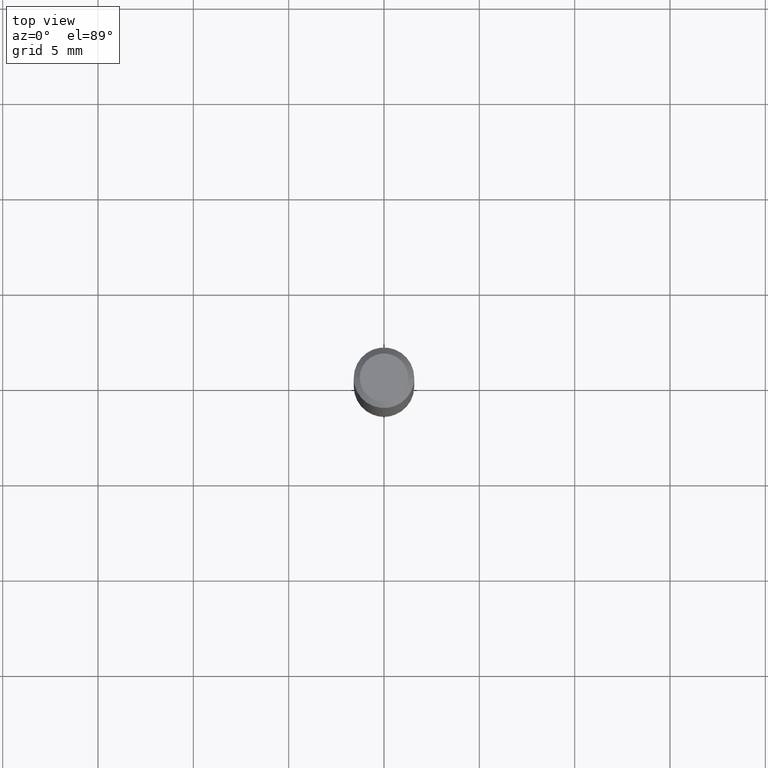
[diagram: clean part render]
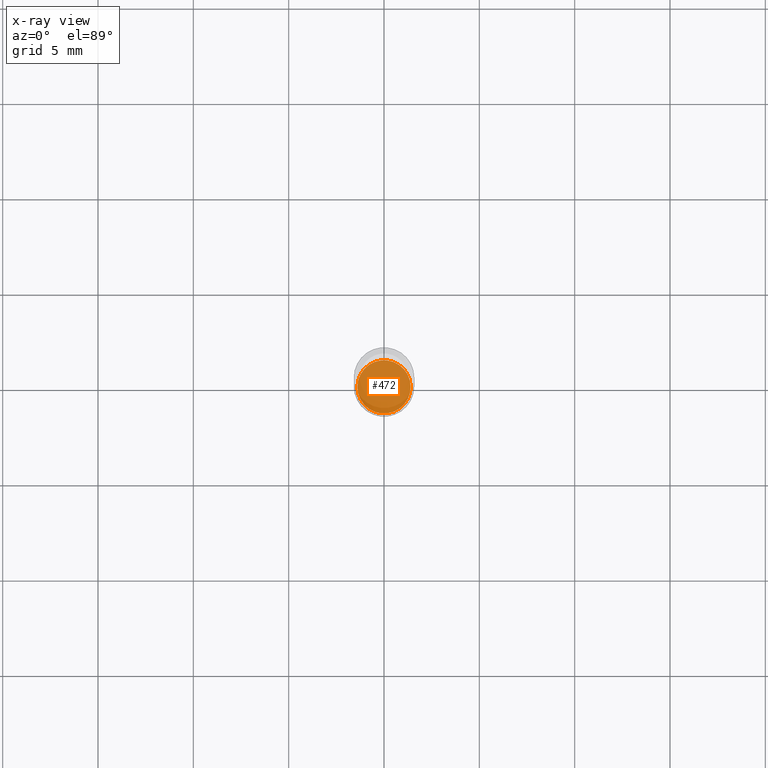
[diagram: x-ray — body ghosted, one internal face saturated and labeled with its STEP entity id]
A machine part, top view, then the same camera in x-ray: the body is ghosted and one INTERNAL B-rep face — a face not visible from any outside direction — is saturated and labeled: STEP entity #472.
In plain terms, the highlighted planar face has unit normal (-0, 0, 1).
Its self-contained STEP definition (entity closure, byte-faithful):
#1 = CARTESIAN_POINT ( 'NONE',  ( 0.05500000000000000028, -4.224692420000205086E-15, -1.100000000000000089 ) ) ;
#4 = EDGE_LOOP ( 'NONE', ( #372, #337 ) ) ;
#12 = PLANE ( 'NONE',  #274 ) ;
#16 = DIRECTION ( 'NONE',  ( -2.438088387897960049E-29, 3.491481338843145188E-15, 1.000000000000000000 ) ) ;
#41 = CARTESIAN_POINT ( 'NONE',  ( 2.690015686803650369E-29, -3.840629472727460101E-15, -1.100000000000000089 ) ) ;
#54 = CARTESIAN_POINT ( 'NONE',  ( -0.05500000000000000028, -3.447181740885293846E-15, -1.100000000000000089 ) ) ;
#74 = EDGE_CURVE ( 'NONE', #182, #380, #471, .T. ) ;
#98 = AXIS2_PLACEMENT_3D ( 'NONE', #159, #204, #314 ) ;
#159 = CARTESIAN_POINT ( 'NONE',  ( 2.690015686803650369E-29, -3.840629472727460101E-15, -1.100000000000000089 ) ) ;
#161 = AXIS2_PLACEMENT_3D ( 'NONE', #361, #286, #209 ) ;
#182 = VERTEX_POINT ( 'NONE', #54 ) ;
#204 = DIRECTION ( 'NONE',  ( -2.445468806185136597E-29, 3.491481338843145583E-15, 1.000000000000000000 ) ) ;
#209 = DIRECTION ( 'NONE',  ( 1.000000000000000000, -6.982962677686270655E-15, 0.000000000000000000 ) ) ;
#230 = FACE_OUTER_BOUND ( 'NONE', #4, .T. ) ;
#274 = AXIS2_PLACEMENT_3D ( 'NONE', #41, #16, #458 ) ;
#286 = DIRECTION ( 'NONE',  ( -2.445468806185136597E-29, 3.491481338843145583E-15, 1.000000000000000000 ) ) ;
#314 = DIRECTION ( 'NONE',  ( 1.000000000000000000, -6.982962677686270655E-15, 0.000000000000000000 ) ) ;
#337 = ORIENTED_EDGE ( 'NONE', *, *, #74, .F. ) ;
#361 = CARTESIAN_POINT ( 'NONE',  ( 2.690015686803650369E-29, -3.840629472727460101E-15, -1.100000000000000089 ) ) ;
#372 = ORIENTED_EDGE ( 'NONE', *, *, #420, .F. ) ;
#380 = VERTEX_POINT ( 'NONE', #1 ) ;
#420 = EDGE_CURVE ( 'NONE', #380, #182, #453, .T. ) ;
#453 = CIRCLE ( 'NONE', #98, 0.05500000000000000028 ) ;
#458 = DIRECTION ( 'NONE',  ( 1.000000000000000000, -6.982962677686265922E-15, 4.876176775795935793E-29 ) ) ;
#471 = CIRCLE ( 'NONE', #161, 0.05500000000000000028 ) ;
#472 = ADVANCED_FACE ( 'NONE', ( #230 ), #12, .F. ) ;